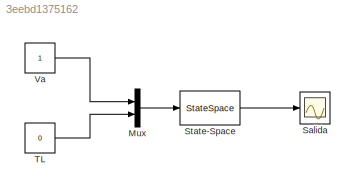
MODEL slx_3eebd1375162
KIND model
CONFIG AbsTol = auto
CONFIG EnableMultiTasking = off
CONFIG FixedStep = auto
CONFIG MaxStep = auto
CONFIG MinStep = auto
CONFIG RelTol = 1e-3
CONFIG SampleTimeConstraint = Unconstrained
CONFIG SolverName = VariableStepAuto
CONFIG StartTime = 0.0
CONFIG StopTime = 2
BLOCK [Mux] Mux
  DisplayOption = bar
  Inputs = 2
  Ports = [2, 1]
BLOCK [Scope] Salida
  Floating = off
  NumInputPorts = 1
  Ports = [1]
  ScopeSpecificationString = Simulink.scopes.TimeScopeBlockCfg('CurrentConfiguration', extmgr.ConfigurationSet(extmgr.Configuration('Core','General UI',true),extmgr.Configuration('Core','Source UI',true),extmgr.Configuration('Sources','WiredSimulink',true),extmgr.Configuration('Visuals','Time Domain',true,'SerializedDisplays',{struct('MinYLimReal','-1.4004','MaxYLimReal','12.60356','YLabelReal','','MinYLimMag','0.00000','MaxY...<+1386ch>
BLOCK [StateSpace] State-Space
  A = [-Ra/La -K/La; K/J -B/J]
  B = [1/La 0; 0 -1/J]
  C = [0 1]
  D = [0 0]
  InitialCondition = 0
  Ports = [1, 1]
BLOCK [Constant] TL
  Value = 0
BLOCK [Constant] Va
LINE Mux:1 -> State-Space:1
LINE State-Space:1 -> Salida:1
LINE TL:1 -> Mux:2
LINE Va:1 -> Mux:1
